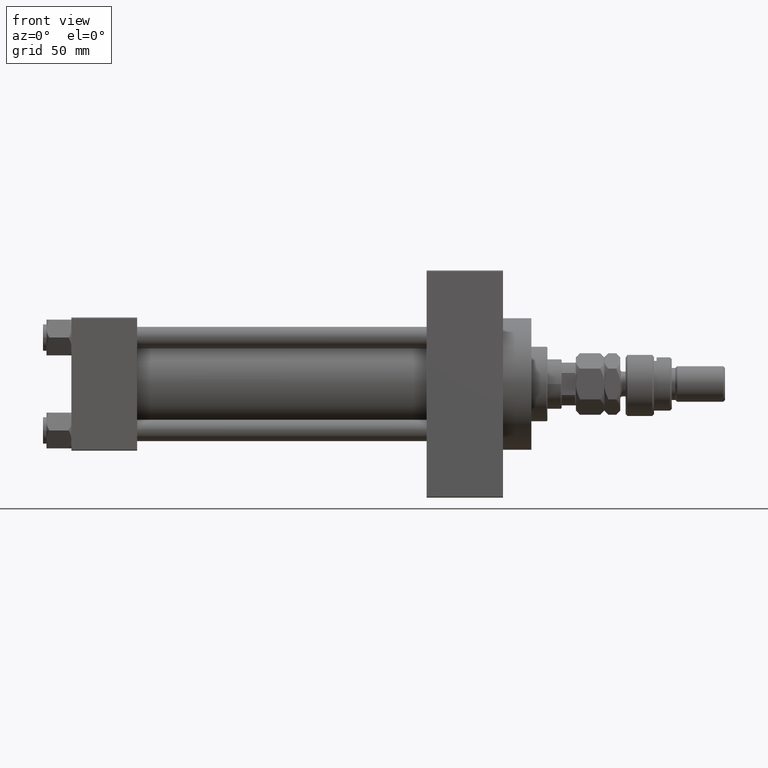
[diagram: clean part render]
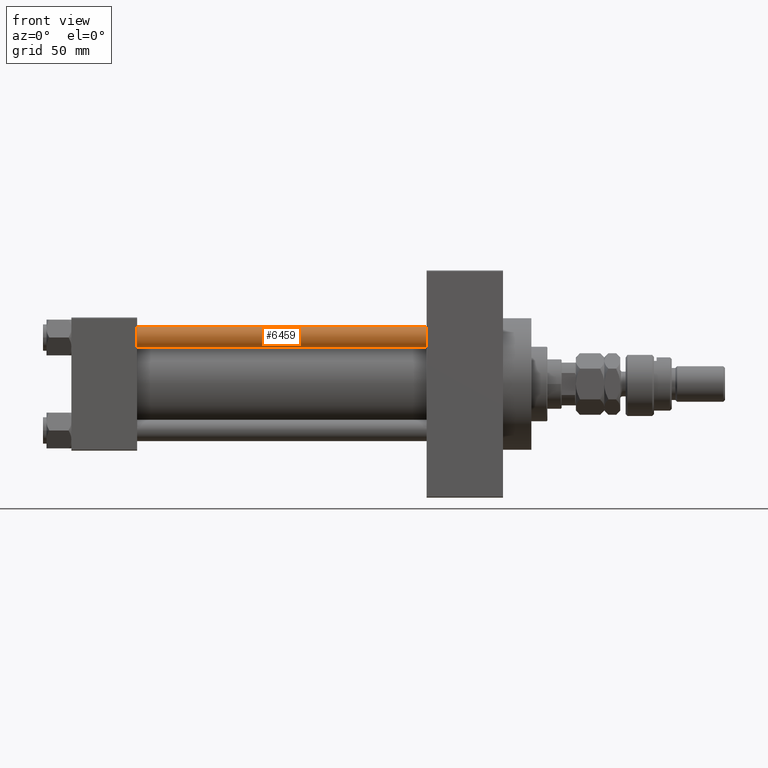
[diagram: same view with one face highlighted and labeled with its STEP entity id]
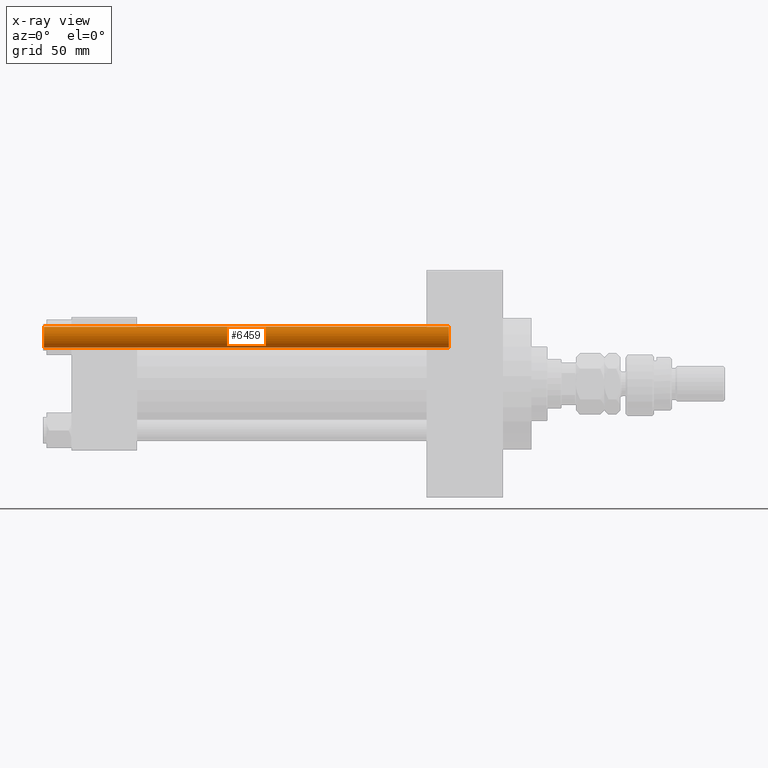
[diagram: x-ray of the same camera — body ghosted, the highlighted face saturated]
A machine part, front view. The second image highlights one B-rep face of the part: STEP entity #6459.
The next image is the same camera in x-ray: the body ghosted, the highlighted face saturated — about 0% of this face is hidden behind the body in this view.
In plain terms, the highlighted cylindrical surface (edge-blend (fillet) strip) has radius 6 mm, axis along (1, 0, 0).
Its self-contained STEP definition (entity closure, byte-faithful):
#4427 = VERTEX_POINT ( 'NONE', #7632 ) ;
#4800 = ORIENTED_EDGE ( 'NONE', *, *, #9100, .T. ) ;
#6247 = DIRECTION ( 'NONE',  ( -0.000000000000000000, -0.000000000000000000, -1.000000000000000000 ) ) ;
#6459 = ADVANCED_FACE ( 'NONE', ( #23091 ), #6757, .T. ) ;
#6500 = CARTESIAN_POINT ( 'NONE',  ( 0.000000000000000000, 0.000000000000000000, 229.0000000000000000 ) ) ;
#6757 = CYLINDRICAL_SURFACE ( 'NONE', #14559, 6.000000000000000888 ) ;
#7632 = CARTESIAN_POINT ( 'NONE',  ( 6.000000000000000888, 7.347880794884119736E-16, 0.5000000000001392220 ) ) ;
#9100 = EDGE_CURVE ( 'NONE', #23937, #4427, #19894, .T. ) ;
#9927 = DIRECTION ( 'NONE',  ( 1.000000000000000000, 0.000000000000000000, 0.000000000000000000 ) ) ;
#11060 = DIRECTION ( 'NONE',  ( -1.000000000000000000, 0.000000000000000000, 0.000000000000000000 ) ) ;
#12075 = AXIS2_PLACEMENT_3D ( 'NONE', #47396, #42389, #38575 ) ;
#12988 = VERTEX_POINT ( 'NONE', #41003 ) ;
#14559 = AXIS2_PLACEMENT_3D ( 'NONE', #6500, #6247, #11060 ) ;
#14978 = EDGE_CURVE ( 'NONE', #27380, #23937, #18793, .T. ) ;
#17038 = DIRECTION ( 'NONE',  ( 0.000000000000000000, 0.000000000000000000, -1.000000000000000000 ) ) ;
#17345 = ORIENTED_EDGE ( 'NONE', *, *, #14978, .T. ) ;
#18133 = CARTESIAN_POINT ( 'NONE',  ( -6.000000000000000888, 0.000000000000000000, 228.5000000000001137 ) ) ;
#18793 = CIRCLE ( 'NONE', #42455, 6.000000000000000888 ) ;
#19352 = CIRCLE ( 'NONE', #12075, 6.000000000000000888 ) ;
#19894 = LINE ( 'NONE', #47580, #24389 ) ;
#21225 = ORIENTED_EDGE ( 'NONE', *, *, #37926, .T. ) ;
#23091 = FACE_OUTER_BOUND ( 'NONE', #40368, .T. ) ;
#23523 = DIRECTION ( 'NONE',  ( -0.000000000000000000, -0.000000000000000000, -1.000000000000000000 ) ) ;
#23937 = VERTEX_POINT ( 'NONE', #24513 ) ;
#24326 = VECTOR ( 'NONE', #23523, 1000.000000000000000 ) ;
#24389 = VECTOR ( 'NONE', #43757, 1000.000000000000000 ) ;
#24513 = CARTESIAN_POINT ( 'NONE',  ( 6.000000000000000888, 7.347880794884119736E-16, 228.5000000000001137 ) ) ;
#27380 = VERTEX_POINT ( 'NONE', #18133 ) ;
#34959 = LINE ( 'NONE', #42827, #24326 ) ;
#37926 = EDGE_CURVE ( 'NONE', #4427, #12988, #19352, .T. ) ;
#38575 = DIRECTION ( 'NONE',  ( 1.000000000000000000, 0.000000000000000000, 0.000000000000000000 ) ) ;
#40368 = EDGE_LOOP ( 'NONE', ( #17345, #4800, #21225, #46695 ) ) ;
#41003 = CARTESIAN_POINT ( 'NONE',  ( -6.000000000000000888, 0.000000000000000000, 0.5000000000001392220 ) ) ;
#41356 = EDGE_CURVE ( 'NONE', #27380, #12988, #34959, .T. ) ;
#42389 = DIRECTION ( 'NONE',  ( -0.000000000000000000, -0.000000000000000000, 1.000000000000000000 ) ) ;
#42455 = AXIS2_PLACEMENT_3D ( 'NONE', #44735, #17038, #9927 ) ;
#42827 = CARTESIAN_POINT ( 'NONE',  ( -6.000000000000000888, 0.000000000000000000, 229.0000000000000000 ) ) ;
#43757 = DIRECTION ( 'NONE',  ( -0.000000000000000000, -0.000000000000000000, -1.000000000000000000 ) ) ;
#44735 = CARTESIAN_POINT ( 'NONE',  ( 0.000000000000000000, 0.000000000000000000, 228.5000000000001137 ) ) ;
#46695 = ORIENTED_EDGE ( 'NONE', *, *, #41356, .F. ) ;
#47396 = CARTESIAN_POINT ( 'NONE',  ( 0.000000000000000000, 0.000000000000000000, 0.5000000000001392220 ) ) ;
#47580 = CARTESIAN_POINT ( 'NONE',  ( 6.000000000000000888, 7.347880794884119736E-16, 229.0000000000000000 ) ) ;